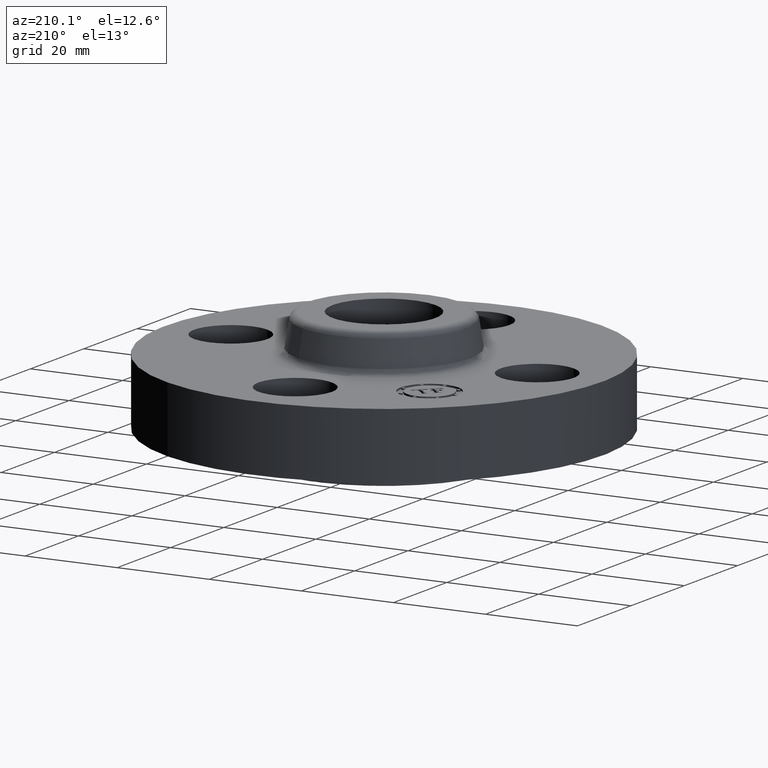
[diagram: clean part render]
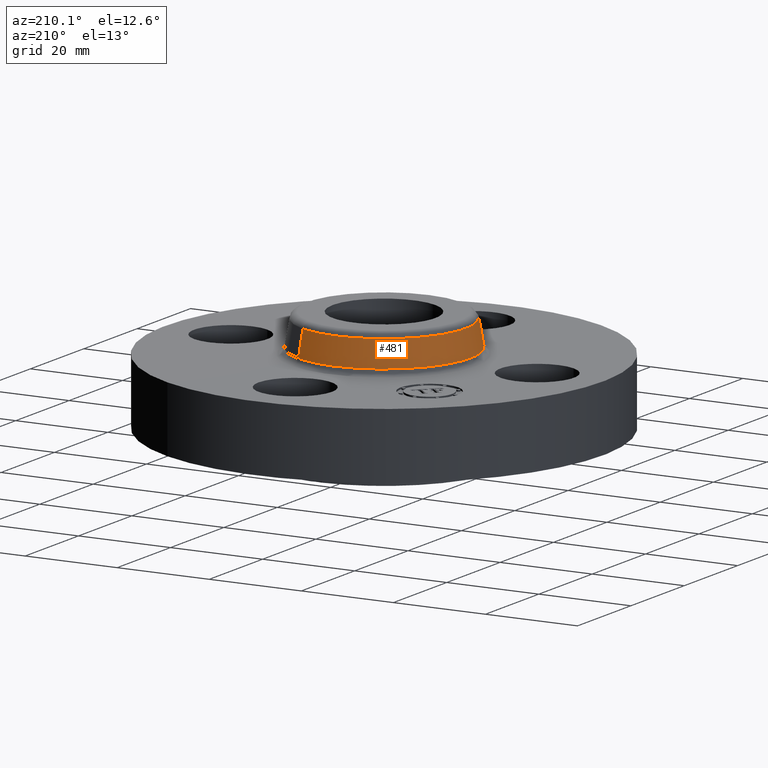
[diagram: same view with one face highlighted and labeled with its STEP entity id]
A machine part, auxiliary view. The second image highlights one B-rep face of the part: STEP entity #481.
In plain terms, the highlighted conical surface has half-angle 10 deg.
Its self-contained STEP definition (entity closure, byte-faithful):
#348=AXIS2_PLACEMENT_3D('Circle Axis2P3D',#346,#347,$) ;
#468=AXIS2_PLACEMENT_3D('Cone Axis2P3D',#465,#466,#467) ;
#472=AXIS2_PLACEMENT_3D('Circle Axis2P3D',#470,#471,$) ;
#312=CARTESIAN_POINT('Vertex',(0.336709115179,0.616341901123,0.830418890663)) ;
#314=CARTESIAN_POINT('Vertex',(-0.336709115179,-0.616341901124,0.830418890663)) ;
#346=CARTESIAN_POINT('Axis2P3D Location',(0.,0.,0.830418890663)) ;
#436=CARTESIAN_POINT('Vertex',(0.355377782268,0.65051466701,0.609581109342)) ;
#438=CARTESIAN_POINT('Vertex',(-0.355377782268,-0.65051466701,0.609581109342)) ;
#441=CARTESIAN_POINT('Line Origine',(0.346043448723,0.633428284066,0.720000000002)) ;
#446=CARTESIAN_POINT('Line Origine',(-0.346043448723,-0.633428284066,0.720000000002)) ;
#465=CARTESIAN_POINT('Axis2P3D Location',(0.,0.,0.830418890663)) ;
#470=CARTESIAN_POINT('Axis2P3D Location',(0.,0.,0.609581109342)) ;
#347=DIRECTION('Axis2P3D Direction',(-0.,0.,-0.0393700787402)) ;
#442=DIRECTION('Vector Direction',(0.00327761303565,0.00599963041827,-0.03877195878)) ;
#447=DIRECTION('Vector Direction',(-0.00327761303565,-0.00599963041827,-0.03877195878)) ;
#466=DIRECTION('Axis2P3D Direction',(0.,0.,-0.0393700787402)) ;
#467=DIRECTION('Axis2P3D XDirection',(-0.0188750212049,-0.0345504945626,0.)) ;
#471=DIRECTION('Axis2P3D Direction',(-0.,0.,-0.0393700787402)) ;
#443=VECTOR('Line Direction',#442,0.0393700787402) ;
#448=VECTOR('Line Direction',#447,0.0393700787402) ;
#476=ORIENTED_EDGE('',*,*,#474,.F.) ;
#477=ORIENTED_EDGE('',*,*,#450,.T.) ;
#478=ORIENTED_EDGE('',*,*,#350,.T.) ;
#479=ORIENTED_EDGE('',*,*,#445,.F.) ;
#481=ADVANCED_FACE('PartBody',(#480),#469,.T.) ;
#349=CIRCLE('generated circle',#348,0.702317853486) ;
#473=CIRCLE('generated circle',#472,0.741257512693) ;
#469=CONICAL_SURFACE('Cone',#468,0.702317853486,0.174532925199) ;
#350=EDGE_CURVE('',#315,#313,#349,.T.) ;
#445=EDGE_CURVE('',#437,#313,#444,.F.) ;
#450=EDGE_CURVE('',#439,#315,#449,.F.) ;
#474=EDGE_CURVE('',#439,#437,#473,.T.) ;
#475=EDGE_LOOP('',(#476,#477,#478,#479)) ;
#480=FACE_OUTER_BOUND('',#475,.T.) ;
#444=LINE('Line',#441,#443) ;
#449=LINE('Line',#446,#448) ;
#313=VERTEX_POINT('',#312) ;
#315=VERTEX_POINT('',#314) ;
#437=VERTEX_POINT('',#436) ;
#439=VERTEX_POINT('',#438) ;